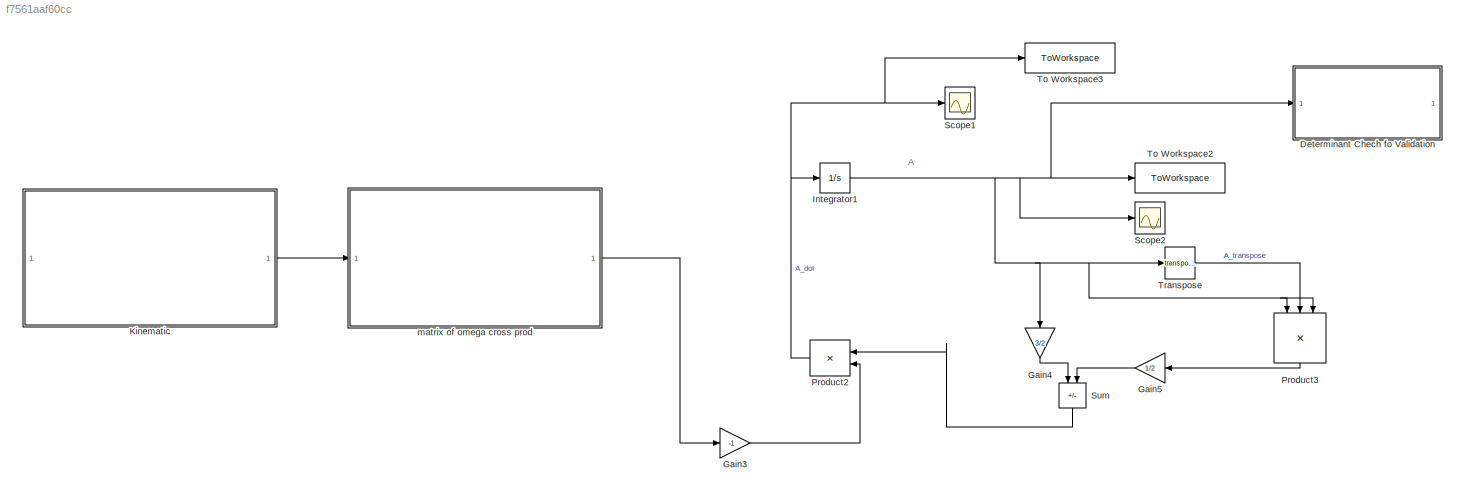
MODEL slx_f7561aaf60cc
KIND model
CONFIG AbsTol = auto
CONFIG EnableMultiTasking = off
CONFIG FixedStep = 0.1
CONFIG MaxStep = auto
CONFIG MinStep = auto
CONFIG RelTol = 1e-3
CONFIG SampleTimeConstraint = Unconstrained
CONFIG SolverName = ode3
CONFIG StartTime = 0.0
CONFIG StopTime = 100
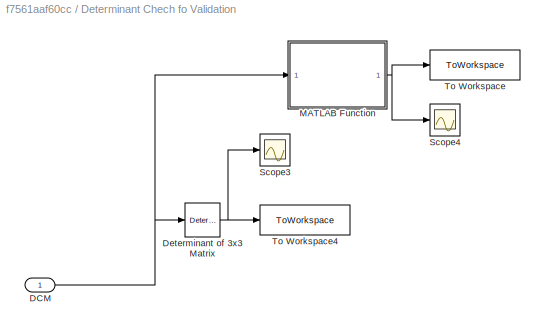
BLOCK [SubSystem] Determinant Chech fo Validation
BLOCK [Inport] Determinant Chech fo Validation/DCM
BLOCK [Reference] Determinant Chech fo Validation/Determinant of 3x3 Matrix  REF=sharedutil/Determinant of
3x3 Matrix
  LibrarySourceBlock = aerolibutil/Determinant of\n3x3 Matrix
  SourceBlock = sharedutil/Determinant of\n3x3 Matrix
  SourceType = Determinant of 3x3 Matrix
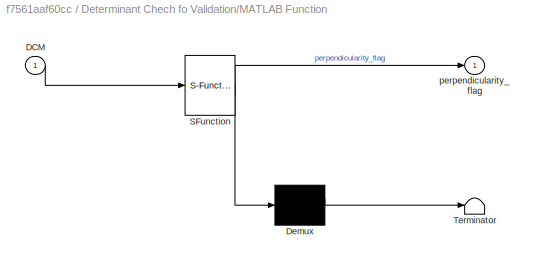
BLOCK [SubSystem] Determinant Chech fo Validation/MATLAB Function
  ErrorFcn = Stateflow.Translate.translate
  LibrarySourceBlock = simulink/User-Defined\nFunctions/MATLAB Function
  PermitHierarchicalResolution = ExplicitOnly
  SFBlockType = MATLAB Function
  TreatAsAtomicUnit = on
BLOCK [Demux] Determinant Chech fo Validation/MATLAB Function/ Demux 
  Outputs = 1
BLOCK [S-Function] Determinant Chech fo Validation/MATLAB Function/ SFunction 
  EnableBusSupport = on
  FunctionName = sf_sfun
  PortCounts = [1 2]
  SFcnIsStateOwnerBlock = off
  SFunctionDeploymentMode = off
  Tag = Stateflow S-Function 2
BLOCK [Terminator] Determinant Chech fo Validation/MATLAB Function/ Terminator 
BLOCK [Inport] Determinant Chech fo Validation/MATLAB Function/DCM
BLOCK [Outport] Determinant Chech fo Validation/MATLAB Function/perpendicularity_flag
BLOCK [Scope] Determinant Chech fo Validation/Scope3
  Floating = off
  NumInputPorts = 1
  ScopeSpecificationString = Simulink.scopes.TimeScopeBlockCfg('CurrentConfiguration', extmgr.ConfigurationSet(extmgr.Configuration('Core','General UI',true),extmgr.Configuration('Core','Source UI',true),extmgr.Configuration('Sources','WiredSimulink',true,'DataLoggingVariableName','ScopeData1'),extmgr.Configuration('Visuals','Time Domain',true,'SerializedDisplays',{struct('MinYLimReal','0.99836','MaxYLimReal','1.00018','YLabe...<+1421ch>
BLOCK [Scope] Determinant Chech fo Validation/Scope4
  Floating = off
  NumInputPorts = 1
  ScopeSpecificationString = Simulink.scopes.TimeScopeBlockCfg('CurrentConfiguration', extmgr.ConfigurationSet(extmgr.Configuration('Core','General UI',true),extmgr.Configuration('Core','Source UI',true),extmgr.Configuration('Sources','WiredSimulink',true,'DataLoggingVariableName','ScopeData2'),extmgr.Configuration('Visuals','Time Domain',true,'SerializedDisplays',{struct('MinYLimReal','-0.0003','MaxYLimReal','0.0005','YLabel...<+1410ch>
BLOCK [ToWorkspace] Determinant Chech fo Validation/To Workspace
  FixptAsFi = on
  MaxDataPoints = inf
  SampleTime = -1
  VariableName = perpendicularity_flag
BLOCK [ToWorkspace] Determinant Chech fo Validation/To Workspace4
  FixptAsFi = on
  MaxDataPoints = inf
  SampleTime = -1
  VariableName = detA
BLOCK [Gain] Gain3
  Gain = -1
BLOCK [Gain] Gain4
  Gain = 3/2
  NameLocation = left
BLOCK [Gain] Gain5
  Gain = 1/2
  NameLocation = top
BLOCK [Integrator] Integrator1
  InitialCondition = A0
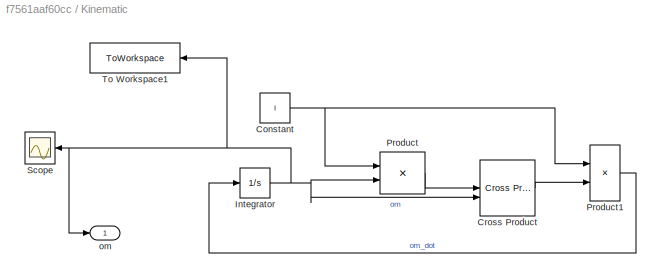
BLOCK [SubSystem] Kinematic
BLOCK [Constant] Kinematic/Constant
  Value = I
BLOCK [Reference] Kinematic/Cross Product  REF=matrix_library/Cross Product
  LibrarySourceBlock = simulink/Matrix\nOperations/Cross Product
  SourceBlock = matrix_library/Cross Product
  SourceType = CrossProduct
BLOCK [Integrator] Kinematic/Integrator
  InitialCondition = om_0
BLOCK [Product] Kinematic/Product
  Multiplication = Matrix(*)
BLOCK [Product] Kinematic/Product1
  Inputs = /*
  Multiplication = Matrix(*)
BLOCK [Scope] Kinematic/Scope
  Floating = off
  NameLocation = top
  NumInputPorts = 1
  ScopeSpecificationString = Simulink.scopes.TimeScopeBlockCfg('CurrentConfiguration', extmgr.ConfigurationSet(extmgr.Configuration('Core','General UI',true),extmgr.Configuration('Core','Source UI',true),extmgr.Configuration('Sources','WiredSimulink',true),extmgr.Configuration('Visuals','Time Domain',true,'SerializedDisplays',{struct('MinYLimReal','-1.01319','MaxYLimReal','1.01319','YLabelReal','','MinYLimMag','0.00000','MaxY...<+1338ch>
BLOCK [ToWorkspace] Kinematic/To Workspace1
  FixptAsFi = on
  MaxDataPoints = inf
  NameLocation = top
  SampleTime = -1
  VariableName = omega
BLOCK [Outport] Kinematic/om
BLOCK [Product] Product2
  Multiplication = Matrix(*)
  NameLocation = top
BLOCK [Product] Product3
  Inputs = 3
  Multiplication = Matrix(*)
  NameLocation = left
BLOCK [Scope] Scope1
  Floating = off
  NumInputPorts = 1
  ScopeSpecificationString = Simulink.scopes.TimeScopeBlockCfg('CurrentConfiguration', extmgr.ConfigurationSet(extmgr.Configuration('Core','General UI',true),extmgr.Configuration('Core','Source UI',true),extmgr.Configuration('Sources','WiredSimulink',true,'DataLoggingVariableName','ScopeData1'),extmgr.Configuration('Visuals','Time Domain',true,'SerializedDisplays',{struct('MinYLimReal','-1.12078','MaxYLimReal','1.12831','YLab...<+1504ch>
BLOCK [Scope] Scope2
  Floating = off
  NumInputPorts = 1
  ScopeSpecificationString = Simulink.scopes.TimeScopeBlockCfg('CurrentConfiguration', extmgr.ConfigurationSet(extmgr.Configuration('Core','General UI',true),extmgr.Configuration('Core','Source UI',true),extmgr.Configuration('Sources','WiredSimulink',true,'DataLoggingVariableName','ScopeData2'),extmgr.Configuration('Visuals','Time Domain',true,'SerializedDisplays',{struct('MinYLimReal','-1.24998','MaxYLimReal','1.25','YLabelR...<+1529ch>
BLOCK [Sum] Sum
  IconShape = rectangular
  Inputs = +-
  NameLocation = left
BLOCK [ToWorkspace] To Workspace2
  FixptAsFi = on
  MaxDataPoints = inf
  SampleTime = -1
  VariableName = A
BLOCK [ToWorkspace] To Workspace3
  FixptAsFi = on
  MaxDataPoints = inf
  SampleTime = -1
  VariableName = A_dot
BLOCK [Math] Transpose
  Operator = transpose
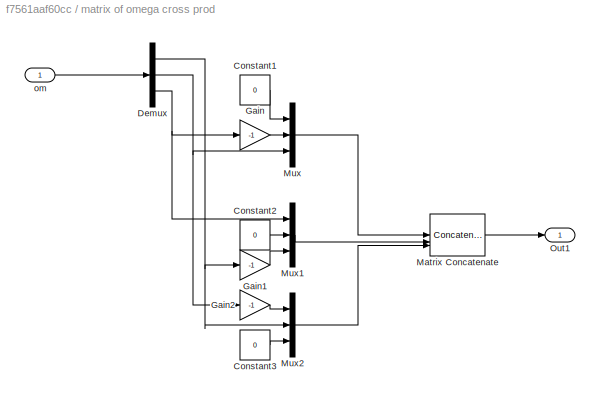
BLOCK [SubSystem] matrix of omega cross prod
BLOCK [Constant] matrix of omega cross prod/Constant1
  Value = 0
BLOCK [Constant] matrix of omega cross prod/Constant2
  Value = 0
BLOCK [Constant] matrix of omega cross prod/Constant3
  Value = 0
BLOCK [Demux] matrix of omega cross prod/Demux
  Outputs = 3
BLOCK [Gain] matrix of omega cross prod/Gain
  Gain = -1
BLOCK [Gain] matrix of omega cross prod/Gain1
  Gain = -1
BLOCK [Gain] matrix of omega cross prod/Gain2
  Gain = -1
BLOCK [Concatenate] matrix of omega cross prod/Matrix Concatenate
  ConcatenateDimension = 2
  Mode = Multidimensional array
  NumInputs = 3
BLOCK [Mux] matrix of omega cross prod/Mux
  DisplayOption = bar
  Inputs = 3
BLOCK [Mux] matrix of omega cross prod/Mux1
  DisplayOption = bar
  Inputs = 3
BLOCK [Mux] matrix of omega cross prod/Mux2
  DisplayOption = bar
  Inputs = 3
BLOCK [Outport] matrix of omega cross prod/Out1
BLOCK [Inport] matrix of omega cross prod/om
ANNOTATION (root): A
NET Determinant Chech fo Validation/DCM:1 -> Determinant Chech fo Validation/Determinant of 3x3 Matrix:1, Determinant Chech fo Validation/MATLAB Function:1
NET Determinant Chech fo Validation/Determinant of 3x3 Matrix:1 -> Determinant Chech fo Validation/Scope3:1, Determinant Chech fo Validation/To Workspace4:1
NET Determinant Chech fo Validation/MATLAB Function:1 -> Determinant Chech fo Validation/Scope4:1, Determinant Chech fo Validation/To Workspace:1
LINE Gain3:1 -> Product2:2
LINE Gain4:1 -> Sum:1
LINE Gain5:1 -> Sum:2
NET Integrator1:1 -> Determinant Chech fo Validation:1, Gain4:1, Product3:1, Product3:3, Scope2:1, To Workspace2:1, Transpose:1
NET Kinematic/Constant:1 -> Kinematic/Product1:1, Kinematic/Product:1
LINE Kinematic/Cross Product:1 -> Kinematic/Product1:2
NET Kinematic/Integrator:1 -> Kinematic/Cross Product:2, Kinematic/Product:2, Kinematic/Scope:1, Kinematic/To Workspace1:1, Kinematic/om:1
LINE Kinematic/Product1:1 -> Kinematic/Integrator:1
LINE Kinematic/Product:1 -> Kinematic/Cross Product:1
LINE Kinematic:1 -> matrix of omega cross prod:1
NET Product2:1 -> Integrator1:1, Scope1:1, To Workspace3:1
LINE Product3:1 -> Gain5:1
LINE Sum:1 -> Product2:1
LINE Transpose:1 -> Product3:2
LINE matrix of omega cross prod/Constant1:1 -> matrix of omega cross prod/Mux:1
LINE matrix of omega cross prod/Constant2:1 -> matrix of omega cross prod/Mux1:2
LINE matrix of omega cross prod/Constant3:1 -> matrix of omega cross prod/Mux2:3
NET matrix of omega cross prod/Demux:1 -> matrix of omega cross prod/Gain1:1, matrix of omega cross prod/Mux2:2
NET matrix of omega cross prod/Demux:2 -> matrix of omega cross prod/Gain2:1, matrix of omega cross prod/Mux:3
NET matrix of omega cross prod/Demux:3 -> matrix of omega cross prod/Gain:1, matrix of omega cross prod/Mux1:1
LINE matrix of omega cross prod/Gain1:1 -> matrix of omega cross prod/Mux1:3
LINE matrix of omega cross prod/Gain2:1 -> matrix of omega cross prod/Mux2:1
LINE matrix of omega cross prod/Gain:1 -> matrix of omega cross prod/Mux:2
LINE matrix of omega cross prod/Matrix Concatenate:1 -> matrix of omega cross prod/Out1:1
LINE matrix of omega cross prod/Mux1:1 -> matrix of omega cross prod/Matrix Concatenate:2
LINE matrix of omega cross prod/Mux2:1 -> matrix of omega cross prod/Matrix Concatenate:3
LINE matrix of omega cross prod/Mux:1 -> matrix of omega cross prod/Matrix Concatenate:1
LINE matrix of omega cross prod/om:1 -> matrix of omega cross prod/Demux:1
LINE matrix of omega cross prod:1 -> Gain3:1
note: NET lines group one-source signal fan-out (src -> all destinations, sorted); 1:1 wires keep LINE
CHART Determinant Chech fo Validation/MATLAB Function states=1 transitions=1
  STATE_LABEL 'eML_blk_kernel()'
  STATE_LABEL 'SCRIPT:\nfunction perpendicularity_flag = fcn(DCM)\n\n\nperpendicularity_flag =zeros(3,1);\n\n    x   = DCM(1,:);\n    y   = DCM(2,:);\n    z   = DCM(3,:);\n\n    perpendicularity_flag(1)=dot(x,y);\n    perpendicularity_flag(2)=dot(x,z);\n    perpendicularity_flag(1)=dot(z,y);\n\nend\n\n'
CHART  states=0 transitions=0
